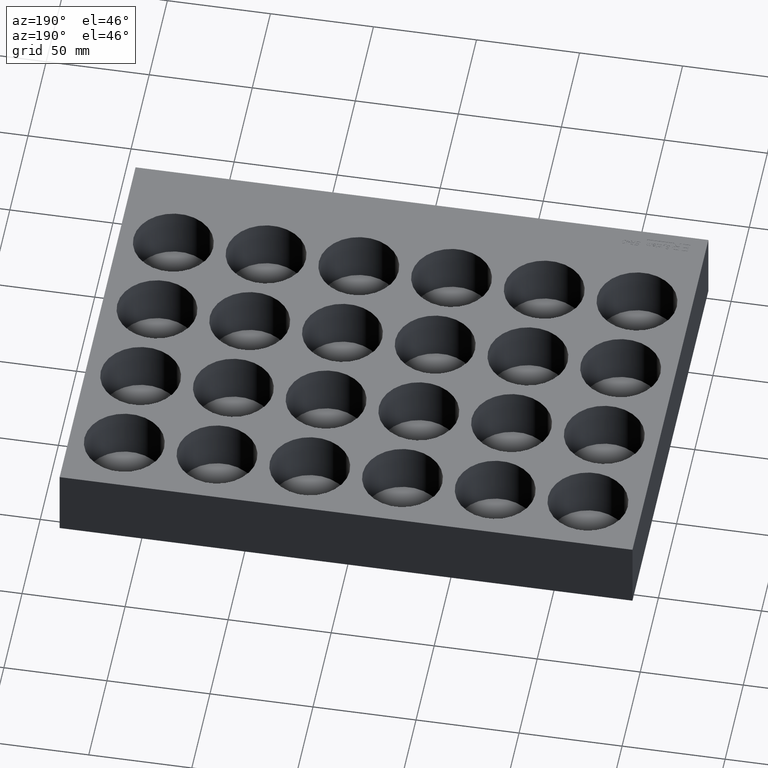
[diagram: clean part render]
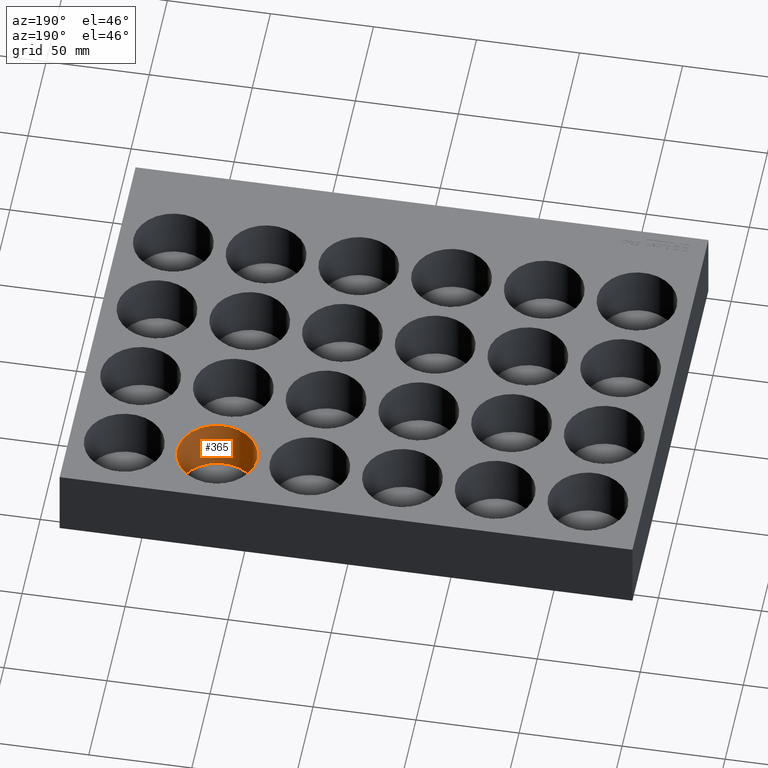
[diagram: same view with one face highlighted and labeled with its STEP entity id]
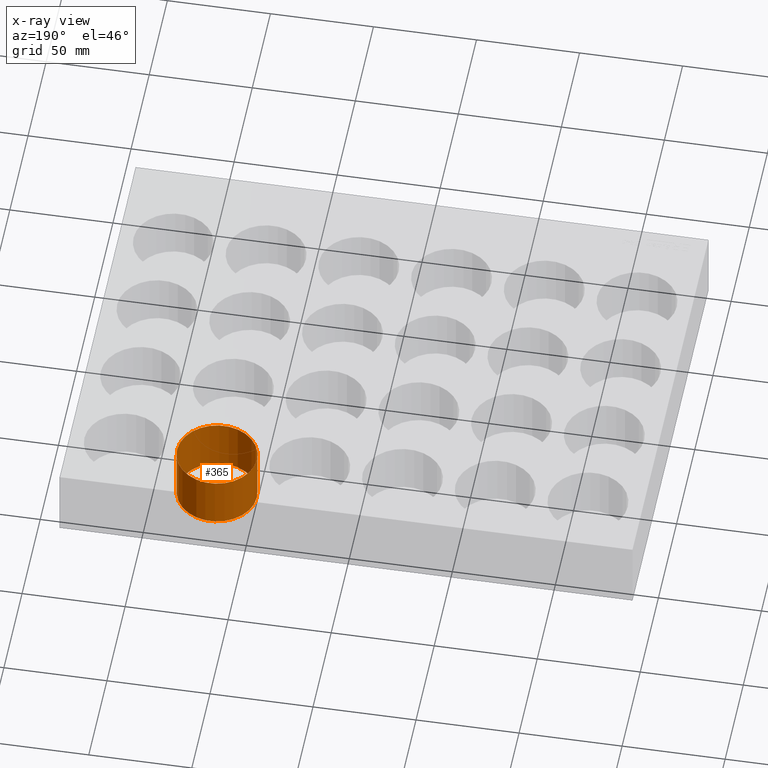
[diagram: x-ray of the same camera — body ghosted, the highlighted face saturated]
A machine part, auxiliary view. The second image highlights one B-rep face of the part: STEP entity #365.
The next image is the same camera in x-ray: the body ghosted, the highlighted face saturated — about 0% of this face is hidden behind the body in this view.
In plain terms, the highlighted cylindrical surface (bore or boss wall) has radius 19.35 mm, axis along (-0, -0, -1).
Its self-contained STEP definition (entity closure, byte-faithful):
#365 = ADVANCED_FACE( '', ( #831, #832 ), #833, .F. );
#831 = FACE_OUTER_BOUND( '', #1442, .T. );
#832 = FACE_OUTER_BOUND( '', #1443, .T. );
#833 = CYLINDRICAL_SURFACE( '', #1444, 19.3500000000000 );
#1442 = EDGE_LOOP( '', ( #2632 ) );
#1443 = EDGE_LOOP( '', ( #2633 ) );
#1444 = AXIS2_PLACEMENT_3D( '', #2634, #2635, #2636 );
#2632 = ORIENTED_EDGE( '', *, *, #4027, .T. );
#2633 = ORIENTED_EDGE( '', *, *, #4028, .F. );
#2634 = CARTESIAN_POINT( '', ( 67.5000000000000, 181.200000000000, -26.0000000000000 ) );
#2635 = DIRECTION( '', ( -0.000000000000000, -0.000000000000000, -1.00000000000000 ) );
#2636 = DIRECTION( '', ( 1.00000000000000, 0.000000000000000, 0.000000000000000 ) );
#4027 = EDGE_CURVE( '', #4754, #4754, #4755, .T. );
#4028 = EDGE_CURVE( '', #4756, #4756, #4757, .T. );
#4754 = VERTEX_POINT( '', #6329 );
#4755 = CIRCLE( '', #6330, 19.3500000000000 );
#4756 = VERTEX_POINT( '', #6331 );
#4757 = CIRCLE( '', #6332, 19.3500000000000 );
#6329 = CARTESIAN_POINT( '', ( 86.8500000000000, 181.200000000000, -26.0000000000000 ) );
#6330 = AXIS2_PLACEMENT_3D( '', #7464, #7465, #7466 );
#6331 = CARTESIAN_POINT( '', ( 86.8500000000000, 181.200000000000, 0.000000000000000 ) );
#6332 = AXIS2_PLACEMENT_3D( '', #7467, #7468, #7469 );
#7464 = CARTESIAN_POINT( '', ( 67.5000000000000, 181.200000000000, -26.0000000000000 ) );
#7465 = DIRECTION( '', ( 0.000000000000000, 0.000000000000000, -1.00000000000000 ) );
#7466 = DIRECTION( '', ( 1.00000000000000, 0.000000000000000, 0.000000000000000 ) );
#7467 = CARTESIAN_POINT( '', ( 67.5000000000000, 181.200000000000, 0.000000000000000 ) );
#7468 = DIRECTION( '', ( 0.000000000000000, 0.000000000000000, -1.00000000000000 ) );
#7469 = DIRECTION( '', ( 1.00000000000000, 0.000000000000000, 0.000000000000000 ) );